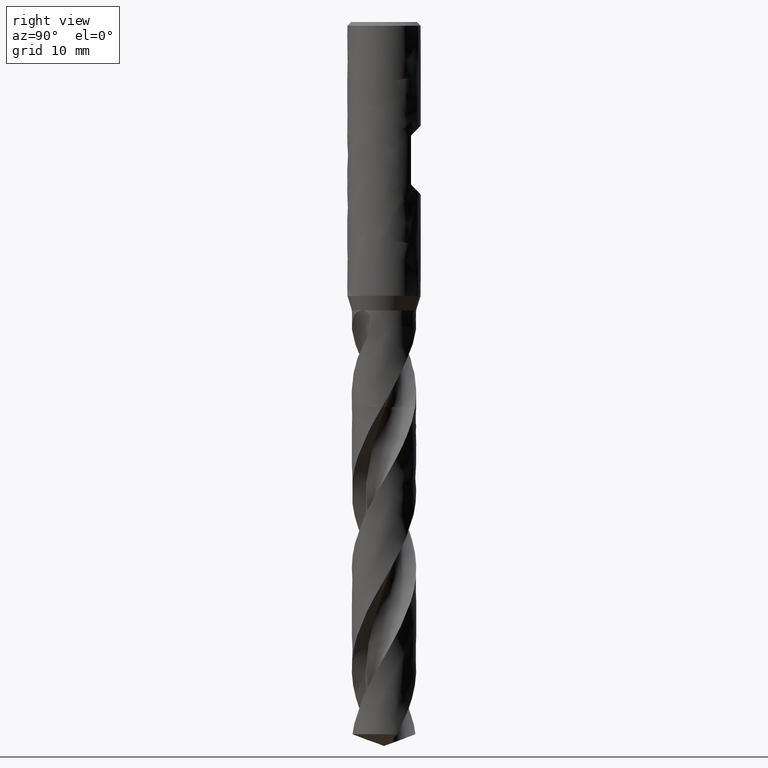
[diagram: clean part render]
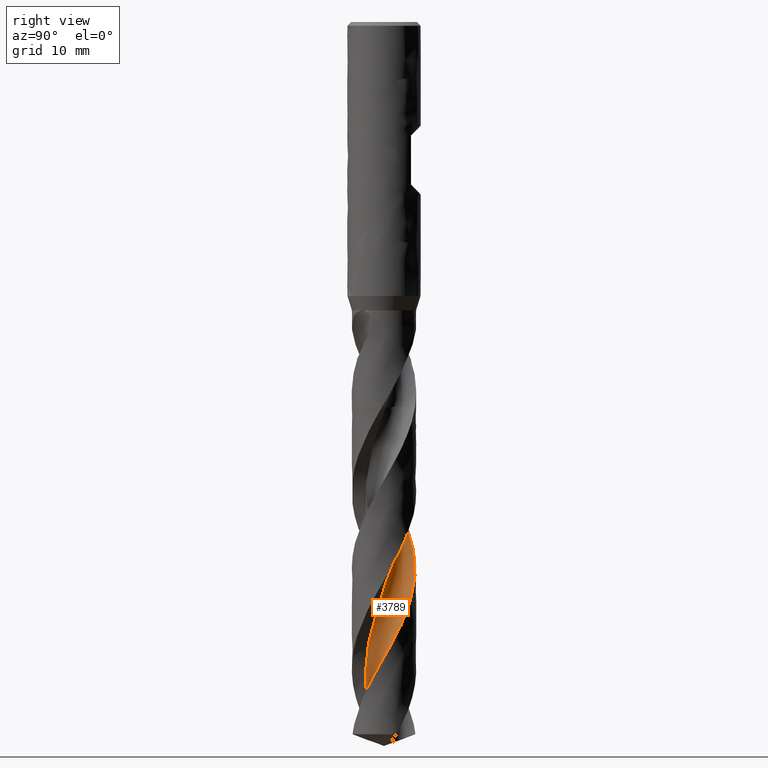
[diagram: same view with one face highlighted and labeled with its STEP entity id]
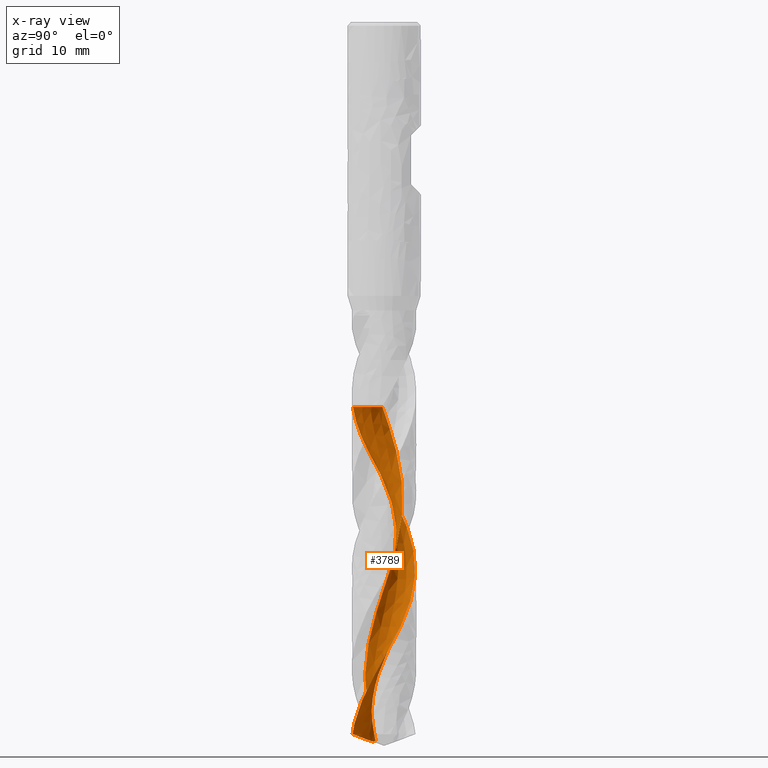
[diagram: x-ray of the same camera — body ghosted, the highlighted face saturated]
A machine part, right view. The second image highlights one B-rep face of the part: STEP entity #3789.
The next image is the same camera in x-ray: the body ghosted, the highlighted face saturated — about 0% of this face is hidden behind the body in this view.
In plain terms, the highlighted face is a freeform B-spline surface patch.
Its self-contained STEP definition (entity closure, byte-faithful):
#1973 = VERTEX_POINT('', #1974);
#1974 = CARTESIAN_POINT('', (-3.1334081568016, -0.248874584782158, -62.75));
#1980 = EDGE_CURVE('', #1973, #1981, #1983, .T.);
#1981 = VERTEX_POINT('', #1982);
#1982 = CARTESIAN_POINT('', (-1.35633793945835, -5.07176965111645, -62.75));
#1983 = B_SPLINE_CURVE_WITH_KNOTS('', 3, (#1984, #1985, #1986, #1987, #1988, #1989, #1990, #1991, #1992, #1993, #1994, #1995, #1996, #1997, #1998, #1999, #2000, #2001, #2002, #2003, #2004, #2005, #2006, #2007, #2008, #2009, #2010, #2011, #2012, #2013, #2014, #2015, #2016, #2017, #2018, #2019, #2020, #2021, #2022, #2023, #2024, #2025, #2026, #2027, #2028, #2029, #2030, #2031, #2032, #2033, #2034, #2035, #2036, #2037, #2038, #2039, #2040, #2041, #2042, #2043, #2044, #2045, #2046, #2047, #2048, #2049, #2050, #2051, #2052, #2053), .UNSPECIFIED., .F., .U., (4, 3, 3, 3, 3, 3, 3, 3, 3, 3, 3, 3, 3, 3, 3, 3, 3, 3, 3, 3, 3, 3, 3, 4), (0., 0.297289814293237, 0.594230461587512, 0.890830299739326, 1.18709591424545, 1.48303224947464, 1.77864270556402, 2.07392920506153, 2.36889223207832, 2.663530845595, 2.95784266756301, 3.01616542127915, 3.04211597583136, 3.33938297834455, 3.63630140955763, 3.93287950829857, 4.22912375063796, 4.52503897875334, 4.82062849576618, 5.11589413054066, 5.41083627513043, 5.70545389644996, 5.99974452274961, 6.00908405424866), .UNSPECIFIED.);
#1984 = CARTESIAN_POINT('', (-3.13340815680161, -0.248874584782156, -62.75));
#1985 = CARTESIAN_POINT('', (-3.03773633939749, -0.274701710646771, -62.75));
#1986 = CARTESIAN_POINT('', (-2.94317957143944, -0.305081901126084, -62.75));
#1987 = CARTESIAN_POINT('', (-2.85036837908436, -0.339812574161054, -62.75));
#1988 = CARTESIAN_POINT('', (-2.75766619350968, -0.374502456007453, -62.75));
#1989 = CARTESIAN_POINT('', (-2.66649978739498, -0.413609554930889, -62.75));
#1990 = CARTESIAN_POINT('', (-2.57747565439929, -0.456873707034031, -62.75));
#1991 = CARTESIAN_POINT('', (-2.48855369750748, -0.500088203360127, -62.75));
#1992 = CARTESIAN_POINT('', (-2.40157224118669, -0.547545858980497, -62.75));
#1993 = CARTESIAN_POINT('', (-2.31710861298185, -0.598931680183066, -62.75));
#1994 = CARTESIAN_POINT('', (-2.23274016265008, -0.650259597252557, -62.75));
#1995 = CARTESIAN_POINT('', (-2.15069751173773, -0.705620180617332, -62.75));
#1996 = CARTESIAN_POINT('', (-2.07152398261853, -0.764646808243239, -62.75));
#1997 = CARTESIAN_POINT('', (-1.99243844954458, -0.823607831748004, -62.75));
#1998 = CARTESIAN_POINT('', (-1.91604136230938, -0.886356674590326, -62.75));
#1999 = CARTESIAN_POINT('', (-1.84283753374668, -0.95247870811988, -62.75));
#2000 = CARTESIAN_POINT('', (-1.76971431576755, -1.01852792939611, -62.75));
#2001 = CARTESIAN_POINT('', (-1.69961651901388, -1.08808813804756, -62.75));
#2002 = CARTESIAN_POINT('', (-1.63300631431776, -1.16070070768367, -62.75));
#2003 = CARTESIAN_POINT('', (-1.56646910708993, -1.23323370191877, -62.75));
#2004 = CARTESIAN_POINT('', (-1.50326584471458, -1.30897150209786, -62.75));
#2005 = CARTESIAN_POINT('', (-1.44381232943583, -1.38741584363623, -62.75));
#2006 = CARTESIAN_POINT('', (-1.38442394268855, -1.46577425308559, -62.75));
#2007 = CARTESIAN_POINT('', (-1.32864705387687, -1.54700481623099, -62.75));
#2008 = CARTESIAN_POINT('', (-1.27684780636079, -1.63057430090481, -62.75));
#2009 = CARTESIAN_POINT('', (-1.22510552996873, -1.71405187213002, -62.75));
#2010 = CARTESIAN_POINT('', (-1.17721909885463, -1.80004557018657, -62.75));
#2011 = CARTESIAN_POINT('', (-1.1335021700843, -1.88799213466059, -62.75));
#2012 = CARTESIAN_POINT('', (-1.08983372892625, -1.9758411552531, -62.75));
#2013 = CARTESIAN_POINT('', (-1.05023034210554, -2.06583018753048, -62.75));
#2014 = CARTESIAN_POINT('', (-1.01495083842181, -2.15737110620659, -62.75));
#2015 = CARTESIAN_POINT('', (-1.00795962145059, -2.17551145279272, -62.75));
#2016 = CARTESIAN_POINT('', (-1.00113604244101, -2.19371729898417, -62.75));
#2017 = CARTESIAN_POINT('', (-0.994481855415924, -2.21198396490981, -62.75));
#2018 = CARTESIAN_POINT('', (-0.991521092550792, -2.22011166945712, -62.75));
#2019 = CARTESIAN_POINT('', (-0.988593781741603, -2.22825163802008, -62.75));
#2020 = CARTESIAN_POINT('', (-0.985700071969737, -2.23640345632694, -62.75));
#2021 = CARTESIAN_POINT('', (-0.952552247390675, -2.32978360310716, -62.75));
#2022 = CARTESIAN_POINT('', (-0.923783235876966, -2.4248349675074, -62.75));
#2023 = CARTESIAN_POINT('', (-0.899584846387327, -2.52092382239248, -62.75));
#2024 = CARTESIAN_POINT('', (-0.875414831604646, -2.61690000477511, -62.75));
#2025 = CARTESIAN_POINT('', (-0.85575108170962, -2.71412416206393, -62.75));
#2026 = CARTESIAN_POINT('', (-0.840724392229345, -2.81194959741998, -62.75));
#2027 = CARTESIAN_POINT('', (-0.825714926571647, -2.90966290375757, -62.75));
#2028 = CARTESIAN_POINT('', (-0.815298652126802, -3.00819238411711, -62.75));
#2029 = CARTESIAN_POINT('', (-0.809544695377202, -3.10688415822457, -62.75));
#2030 = CARTESIAN_POINT('', (-0.803797215826367, -3.20546483552244, -62.75));
#2031 = CARTESIAN_POINT('', (-0.80268884737278, -3.3044251446347, -62.75));
#2032 = CARTESIAN_POINT('', (-0.80622692906064, -3.40310982143745, -62.75));
#2033 = CARTESIAN_POINT('', (-0.80976108129086, -3.5016848972498, -62.75));
#2034 = CARTESIAN_POINT('', (-0.817939133212582, -3.60020216159012, -62.75));
#2035 = CARTESIAN_POINT('', (-0.830707054000696, -3.69801072973292, -62.75));
#2036 = CARTESIAN_POINT('', (-0.843460921258739, -3.79571164090663, -62.75));
#2037 = CARTESIAN_POINT('', (-0.860822577634401, -3.89292022602044, -62.75));
#2038 = CARTESIAN_POINT('', (-0.882677569939173, -3.98899565724803, -62.75));
#2039 = CARTESIAN_POINT('', (-0.904508615373641, -4.08496581706399, -62.75));
#2040 = CARTESIAN_POINT('', (-0.930871026863394, -4.1800158505983, -62.75));
#2041 = CARTESIAN_POINT('', (-0.961591395584618, -4.27352052997584, -62.75));
#2042 = CARTESIAN_POINT('', (-0.992278107365849, -4.36692276652752, -62.75));
#2043 = CARTESIAN_POINT('', (-1.0273803852674, -4.45898749936819, -62.75));
#2044 = CARTESIAN_POINT('', (-1.0666678354923, -4.54911046163435, -62.75));
#2045 = CARTESIAN_POINT('', (-1.10591205794503, -4.6391342620853, -62.75));
#2046 = CARTESIAN_POINT('', (-1.14941794553576, -4.72741720303733, -62.75));
#2047 = CARTESIAN_POINT('', (-1.1969005743829, -4.81338111175091, -62.75));
#2048 = CARTESIAN_POINT('', (-1.24433050243402, -4.89924960943677, -62.75));
#2049 = CARTESIAN_POINT('', (-1.2958316979214, -4.9829913714838, -62.75));
#2050 = CARTESIAN_POINT('', (-1.35106762205654, -5.06405918047539, -62.75));
#2051 = CARTESIAN_POINT('', (-1.35282057511463, -5.0666319275763, -62.75));
#2052 = CARTESIAN_POINT('', (-1.35457735160467, -5.06920208999283, -62.75));
#2053 = CARTESIAN_POINT('', (-1.35633793984704, -5.07176965084992, -62.75));
#2359 = VERTEX_POINT('', #2360);
#2360 = CARTESIAN_POINT('', (-2.79821184013639, -1.43162568454985, -116.855978291857));
#2391 = EDGE_CURVE('', #2359, #1973, #2392, .T.);
#2392 = B_SPLINE_CURVE_WITH_KNOTS('', 3, (#2393, #2394, #2395, #2396, #2397, #2398, #2399, #2400, #2401, #2402, #2403, #2404, #2405, #2406, #2407, #2408, #2409, #2410, #2411, #2412, #2413, #2414, #2415, #2416, #2417, #2418, #2419, #2420, #2421, #2422, #2423, #2424, #2425, #2426, #2427, #2428, #2429, #2430, #2431, #2432, #2433, #2434, #2435, #2436, #2437, #2438, #2439, #2440, #2441, #2442, #2443, #2444, #2445, #2446, #2447, #2448, #2449, #2450, #2451), .UNSPECIFIED., .F., .U., (4, 1, 1, 1, 1, 1, 1, 1, 1, 1, 1, 1, 1, 1, 1, 1, 1, 1, 1, 1, 1, 1, 1, 1, 1, 1, 1, 1, 1, 1, 1, 1, 1, 1, 1, 1, 1, 1, 1, 1, 1, 1, 1, 1, 1, 1, 1, 1, 1, 1, 1, 1, 1, 1, 1, 1, 4), (1.19402170814299, 1.94712328767123, 2.92068493150685, 3.89424657534247, 4.86780821917808, 5.8413698630137, 6.81493150684932, 7.78849315068493, 8.76205479452055, 9.73561643835616, 10.7091780821918, 11.6827397260274, 12.656301369863, 13.6298630136986, 14.6034246575342, 15.5769863013699, 16.5505479452055, 17.5241095890411, 18.4976712328767, 19.4712328767123, 20.4447945205479, 21.4183561643836, 22.3919178082192, 23.3654794520548, 24.3390410958904, 25.312602739726, 26.2861643835616, 27.2597260273973, 28.2332876712329, 29.2068493150685, 30.1804109589041, 31.1539726027397, 32.1275342465753, 33.101095890411, 34.0746575342466, 35.0482191780822, 36.0217808219178, 36.9953424657534, 37.968904109589, 38.9424657534247, 39.9160273972603, 40.8895890410959, 41.8631506849315, 42.8367123287671, 43.8102739726027, 44.7838356164384, 45.757397260274, 46.7309589041096, 47.7045205479452, 48.6780821917808, 49.6516438356164, 50.6252054794521, 51.5987671232877, 52.5723287671233, 53.5458904109589, 54.5194520547945, 55.3), .UNSPECIFIED.);
#2393 = CARTESIAN_POINT('', (-2.79821184013638, -1.43162568454986, -116.855978291857));
#2394 = CARTESIAN_POINT('', (-2.75712214684186, -1.50708040619269, -116.604944432014));
#2395 = CARTESIAN_POINT('', (-2.65598967799593, -1.6760699097674, -116.029390024226));
#2396 = CARTESIAN_POINT('', (-2.47423372732643, -1.92400677676863, -115.129315068493));
#2397 = CARTESIAN_POINT('', (-2.25116967736585, -2.16944879818277, -114.155753424658));
#2398 = CARTESIAN_POINT('', (-2.00420425036731, -2.38958610670809, -113.182191780822));
#2399 = CARTESIAN_POINT('', (-1.73615382624428, -2.58214062600634, -112.208630136986));
#2400 = CARTESIAN_POINT('', (-1.45004508709054, -2.74514078872852, -111.235068493151));
#2401 = CARTESIAN_POINT('', (-1.14908410278058, -2.87694196060473, -110.261506849315));
#2402 = CARTESIAN_POINT('', (-0.836621102513386, -2.97624172467087, -109.287945205479));
#2403 = CARTESIAN_POINT('', (-0.516114663338233, -3.0420919938626, -108.314383561644));
#2404 = CARTESIAN_POINT('', (-0.19109478275684, -3.07390728948073, -107.340821917808));
#2405 = CARTESIAN_POINT('', (0.134874545802901, -3.07146927486184, -106.367260273973));
#2406 = CARTESIAN_POINT('', (0.458232939868773, -3.03492747951229, -105.393698630137));
#2407 = CARTESIAN_POINT('', (0.775461020951675, -2.96479623763425, -104.420136986301));
#2408 = CARTESIAN_POINT('', (1.08311722391052, -2.86194788817521, -103.446575342466));
#2409 = CARTESIAN_POINT('', (1.37787365482435, -2.7276023234294, -102.47301369863));
#2410 = CARTESIAN_POINT('', (1.65655064241312, -2.56331300738391, -101.499452054795));
#2411 = CARTESIAN_POINT('', (1.91614964219238, -2.37094961904653, -100.525890410959));
#2412 = CARTESIAN_POINT('', (2.15388417034934, -2.15267750803563, -99.5523287671233));
#2413 = CARTESIAN_POINT('', (2.36720846492319, -1.91093417990145, -98.5787671232877));
#2414 = CARTESIAN_POINT('', (2.55384359523886, -1.64840305661177, -97.6052054794521));
#2415 = CARTESIAN_POINT('', (2.71180076640357, -1.36798478316549, -96.6316438356164));
#2416 = CARTESIAN_POINT('', (2.83940159379618, -1.07276637417311, -95.6580821917808));
#2417 = CARTESIAN_POINT('', (2.93529515259231, -0.765988514274093, -94.6845205479452));
#2418 = CARTESIAN_POINT('', (2.99847163919656, -0.451011343282986, -93.7109589041096));
#2419 = CARTESIAN_POINT('', (3.02827251470304, -0.13127907082888, -92.737397260274));
#2420 = CARTESIAN_POINT('', (3.02439703487661, 0.189716224134718, -91.7638356164384));
#2421 = CARTESIAN_POINT('', (2.98690510632807, 0.508471246303979, -90.7902739726027));
#2422 = CARTESIAN_POINT('', (2.91621644423224, 0.821508222969066, -89.8167123287671));
#2423 = CARTESIAN_POINT('', (2.81310604278971, 1.12541136197294, -88.8431506849315));
#2424 = CARTESIAN_POINT('', (2.67869600534055, 1.41686266471234, -87.8695890410959));
#2425 = CARTESIAN_POINT('', (2.5144438162857, 1.69267673658663, -86.8960273972603));
#2426 = CARTESIAN_POINT('', (2.32212717144373, 1.94983424701389, -85.9224657534247));
#2427 = CARTESIAN_POINT('', (2.10382551686197, 2.18551370409743, -84.9489041095891));
#2428 = CARTESIAN_POINT('', (1.86189847811263, 2.39712122512497, -83.9753424657534));
#2429 = CARTESIAN_POINT('', (1.59896139245043, 2.58231800317808, -83.0017808219178));
#2430 = CARTESIAN_POINT('', (1.31785818461492, 2.73904519205563, -82.0282191780822));
#2431 = CARTESIAN_POINT('', (1.02163185327022, 2.86554595628162, -81.0546575342466));
#2432 = CARTESIAN_POINT('', (0.713492858847355, 2.96038445996453, -80.081095890411));
#2433 = CARTESIAN_POINT('', (0.396785724668815, 3.02246159746645, -79.1075342465753));
#2434 = CARTESIAN_POINT('', (0.074954181492704, 3.05102729997497, -78.1339726027397));
#2435 = CARTESIAN_POINT('', (-0.248494799163272, 3.04568928487574, -77.1604109589041));
#2436 = CARTESIAN_POINT('', (-0.570027725516176, 3.00641814901606, -76.1868493150685));
#2437 = CARTESIAN_POINT('', (-0.886121693711166, 2.93354874221942, -75.2132876712329));
#2438 = CARTESIAN_POINT('', (-1.19330151223743, 2.82777779347777, -74.2397260273973));
#2439 = CARTESIAN_POINT('', (-1.48817646939561, 2.69015779867669, -73.2661643835616));
#2440 = CARTESIAN_POINT('', (-1.76747637178634, 2.52208721559387, -72.292602739726));
#2441 = CARTESIAN_POINT('', (-2.02808648901892, 2.32529704734646, -71.3190410958904));
#2442 = CARTESIAN_POINT('', (-2.26708104103188, 2.10183393498828, -70.3454794520548));
#2443 = CARTESIAN_POINT('', (-2.4817549047093, 1.85403990132322, -69.3719178082192));
#2444 = CARTESIAN_POINT('', (-2.66965312713995, 1.58452897267363, -68.3983561643836));
#2445 = CARTESIAN_POINT('', (-2.82859824319863, 1.29616074773671, -67.4247945205479));
#2446 = CARTESIAN_POINT('', (-2.95671395599351, 0.992011721723339, -66.4512328767123));
#2447 = CARTESIAN_POINT('', (-3.05244921651772, 0.675342557634146, -65.4776712328767));
#2448 = CARTESIAN_POINT('', (-3.11458641609078, 0.349569392316456, -64.5041095890411));
#2449 = CARTESIAN_POINT('', (-3.14046236696781, 0.0401083352556249, -63.5948858447489));
#2450 = CARTESIAN_POINT('', (-3.13816336359385, -0.159946540278383, -63.0101826484018));
#2451 = CARTESIAN_POINT('', (-3.1334081568016, -0.248874584782158, -62.75));
#3712 = EDGE_CURVE('', #1981, #3713, #3715, .T.);
#3713 = VERTEX_POINT('', #3714);
#3714 = CARTESIAN_POINT('', (-2.65477069065381, -4.52931480248894, -65.1981860486764));
#3715 = B_SPLINE_CURVE_WITH_KNOTS('', 3, (#3716, #3717, #3718, #3719, #3720, #3721, #3722, #3723, #3724, #3725, #3726, #3727, #3728), .UNSPECIFIED., .F., .U., (4, 3, 3, 3, 4), (6.2967392320551, 7.00585647049719, 8.00463571452116, 9.00311465826316, 9.12238741529185), .UNSPECIFIED.);
#3716 = CARTESIAN_POINT('', (-1.35633793945835, -5.07176965111645, -62.75));
#3717 = CARTESIAN_POINT('', (-1.47041764698693, -5.04126143680721, -62.9547608036939));
#3718 = CARTESIAN_POINT('', (-1.58348637967371, -5.00689627858443, -63.1595964558363));
#3719 = CARTESIAN_POINT('', (-1.69522744394253, -4.96877287801566, -63.3643706202826));
#3720 = CARTESIAN_POINT('', (-1.85261278115705, -4.91507673422517, -63.6527914540655));
#3721 = CARTESIAN_POINT('', (-2.0074855323784, -4.85388001956982, -63.9412949717076));
#3722 = CARTESIAN_POINT('', (-2.15905463211397, -4.78549716283958, -64.2297227624956));
#3723 = CARTESIAN_POINT('', (-2.31057815997401, -4.71713486659985, -64.5180638324719));
#3724 = CARTESIAN_POINT('', (-2.45888254606289, -4.64155368458583, -64.8064929032528));
#3725 = CARTESIAN_POINT('', (-2.60321595322281, -4.55914100471631, -65.0948492339475));
#3726 = CARTESIAN_POINT('', (-2.62045722156523, -4.54929644304201, -65.1292946819804));
#3727 = CARTESIAN_POINT('', (-2.63764254545913, -4.5393541351101, -65.1637403804217));
#3728 = CARTESIAN_POINT('', (-2.65477069065382, -4.52931480248894, -65.1981860486764));
#3789 = ADVANCED_FACE('', (#3790), #3991, .T.);
#3790 = FACE_OUTER_BOUND('', #3791, .T.);
#3791 = EDGE_LOOP('', (#3792, #3793, #3794, #3920, #3932, #3990));
#3792 = ORIENTED_EDGE('', *, *, #1980, .F.);
#3793 = ORIENTED_EDGE('', *, *, #2391, .F.);
#3794 = ORIENTED_EDGE('', *, *, #3795, .T.);
#3795 = EDGE_CURVE('', #2359, #3796, #3798, .T.);
#3796 = VERTEX_POINT('', #3797);
#3797 = CARTESIAN_POINT('', (1.12024850568416, -5.12908795844957, -116.089156270102));
#3798 = B_SPLINE_CURVE_WITH_KNOTS('', 3, (#3799, #3800, #3801, #3802, #3803, #3804, #3805, #3806, #3807, #3808, #3809, #3810, #3811, #3812, #3813, #3814, #3815, #3816, #3817, #3818, #3819, #3820, #3821, #3822, #3823, #3824, #3825, #3826, #3827, #3828, #3829, #3830, #3831, #3832, #3833, #3834, #3835, #3836, #3837, #3838, #3839, #3840, #3841, #3842, #3843, #3844, #3845, #3846, #3847, #3848, #3849, #3850, #3851, #3852, #3853, #3854, #3855, #3856, #3857, #3858, #3859, #3860, #3861, #3862, #3863, #3864, #3865, #3866, #3867, #3868, #3869, #3870, #3871, #3872, #3873, #3874, #3875, #3876, #3877, #3878, #3879, #3880, #3881, #3882, #3883, #3884, #3885, #3886, #3887, #3888, #3889, #3890, #3891, #3892, #3893, #3894, #3895, #3896, #3897, #3898, #3899, #3900, #3901, #3902, #3903, #3904, #3905, #3906, #3907, #3908, #3909, #3910, #3911, #3912, #3913, #3914, #3915, #3916, #3917, #3918, #3919), .UNSPECIFIED., .F., .U., (4, 3, 3, 3, 3, 3, 3, 3, 3, 3, 3, 3, 3, 3, 3, 3, 3, 3, 3, 3, 3, 3, 3, 3, 3, 3, 3, 3, 3, 3, 3, 3, 3, 3, 3, 3, 3, 3, 3, 3, 4), (0., 0.197298782090478, 0.394420374583606, 0.591302453466268, 0.787881699456655, 0.918886004257104, 1.04978506174527, 1.18058571113444, 1.31130550796435, 1.44197361851217, 1.57262927055434, 1.70331712535762, 1.83408006544027, 1.9649513018826, 2.09594846757682, 2.22707172691831, 2.35830615386282, 2.4896268888015, 2.62100491876217, 2.75241180764632, 2.88382267147547, 3.01521749215598, 3.05414310091258, 3.0931078264846, 3.22500062195649, 3.26396767200481, 3.4628079316441, 3.66119938575213, 3.85921606723416, 4.05692014955588, 4.25436209683736, 4.4515820684241, 4.64861163420901, 4.84547539503796, 5.04219236603148, 5.23877709902168, 5.43524056738805, 5.6315908507867, 5.92534421739599, 6.21875670805064, 6.26438132676479), .UNSPECIFIED.);
#3799 = CARTESIAN_POINT('', (-2.79821184013639, -1.43162568454985, -116.855978291857));
#3800 = CARTESIAN_POINT('', (-2.73805043670471, -1.4166883745997, -116.87794834772));
#3801 = CARTESIAN_POINT('', (-2.67716208648093, -1.40416420574339, -116.899721404657));
#3802 = CARTESIAN_POINT('', (-2.61579144733371, -1.39416939127693, -116.921144508552));
#3803 = CARTESIAN_POINT('', (-2.55447592377679, -1.38418355292848, -116.942548372839));
#3804 = CARTESIAN_POINT('', (-2.49258365044756, -1.37670750762033, -116.963636488343));
#3805 = CARTESIAN_POINT('', (-2.43037618832193, -1.37183432076656, -116.984225794033));
#3806 = CARTESIAN_POINT('', (-2.36824431169488, -1.36696705510368, -117.00479008258));
#3807 = CARTESIAN_POINT('', (-2.30569600202888, -1.36468898666088, -117.024890724317));
#3808 = CARTESIAN_POINT('', (-2.24300882719713, -1.36506302502217, -117.044310521911));
#3809 = CARTESIAN_POINT('', (-2.18041807423663, -1.36543648805879, -117.06370044907));
#3810 = CARTESIAN_POINT('', (-2.11758026715662, -1.36845540138358, -117.082445151086));
#3811 = CARTESIAN_POINT('', (-2.05478817293926, -1.37414316721292, -117.100292092832));
#3812 = CARTESIAN_POINT('', (-2.01294227710999, -1.37793360706626, -117.112185648453));
#3813 = CARTESIAN_POINT('', (-1.97107455808782, -1.3829118040672, -117.123691921523));
#3814 = CARTESIAN_POINT('', (-1.9292755894945, -1.3890722413781, -117.134728149775));
#3815 = CARTESIAN_POINT('', (-1.88751020169921, -1.39522772946638, -117.145755511652));
#3816 = CARTESIAN_POINT('', (-1.8457780402269, -1.402568932485, -117.15632275515));
#3817 = CARTESIAN_POINT('', (-1.80417239620504, -1.41107817605521, -117.16634291087));
#3818 = CARTESIAN_POINT('', (-1.76259803073029, -1.41958102249392, -117.176355533575));
#3819 = CARTESIAN_POINT('', (-1.72111350535519, -1.42925776849936, -117.185830401794));
#3820 = CARTESIAN_POINT('', (-1.67981431864797, -1.44007661146098, -117.194679621529));
#3821 = CARTESIAN_POINT('', (-1.63854066044505, -1.45088876690885, -117.203523371244));
#3822 = CARTESIAN_POINT('', (-1.59741480778919, -1.46285150419133, -117.21174986748));
#3823 = CARTESIAN_POINT('', (-1.5565334333029, -1.47591724098391, -117.21927510622));
#3824 = CARTESIAN_POINT('', (-1.51566822321025, -1.4889778116167, -117.226797369499));
#3825 = CARTESIAN_POINT('', (-1.47500958609772, -1.50315262244651, -117.233625439605));
#3826 = CARTESIAN_POINT('', (-1.43465356865479, -1.51837753434329, -117.239685329034));
#3827 = CARTESIAN_POINT('', (-1.39430139894234, -1.53360099462613, -117.245744640685));
#3828 = CARTESIAN_POINT('', (-1.35421425731711, -1.54988847405005, -117.251041134487));
#3829 = CARTESIAN_POINT('', (-1.31448488850101, -1.56716001135187, -117.255517500634));
#3830 = CARTESIAN_POINT('', (-1.27474572756836, -1.58443580557776, -117.259994970073));
#3831 = CARTESIAN_POINT('', (-1.23532790788971, -1.60271188897172, -117.263655723615));
#3832 = CARTESIAN_POINT('', (-1.19631751488463, -1.62189518586089, -117.266465006156));
#3833 = CARTESIAN_POINT('', (-1.15728470888439, -1.64108950430373, -117.26927590274));
#3834 = CARTESIAN_POINT('', (-1.11862495706455, -1.66120892099847, -117.271236752572));
#3835 = CARTESIAN_POINT('', (-1.08041422445716, -1.68215189200745, -117.272338942784));
#3836 = CARTESIAN_POINT('', (-1.04217184616148, -1.70311220774362, -117.273442045818));
#3837 = CARTESIAN_POINT('', (-1.00434697484375, -1.72491474638785, -117.273686135096));
#3838 = CARTESIAN_POINT('', (-0.967002709044644, -1.7474553847061, -117.273088970209));
#3839 = CARTESIAN_POINT('', (-0.929622509181017, -1.7700177124788, -117.272491230706));
#3840 = CARTESIAN_POINT('', (-0.892694826887319, -1.79333667372917, -117.271050505952));
#3841 = CARTESIAN_POINT('', (-0.856268576105138, -1.81731152282979, -117.268807710055));
#3842 = CARTESIAN_POINT('', (-0.819807262588639, -1.841309449347, -117.266562755315));
#3843 = CARTESIAN_POINT('', (-0.783822967299399, -1.86598086807492, -117.263513101271));
#3844 = CARTESIAN_POINT('', (-0.748350797405703, -1.89123325817726, -117.259717098187));
#3845 = CARTESIAN_POINT('', (-0.712848553853672, -1.91650705750702, -117.255917876814));
#3846 = CARTESIAN_POINT('', (-0.677837639728336, -1.94237795145805, -117.251369223167));
#3847 = CARTESIAN_POINT('', (-0.643341160997148, -1.96876466733243, -117.246140218162));
#3848 = CARTESIAN_POINT('', (-0.608821995216879, -1.99516873676693, -117.240907774236));
#3849 = CARTESIAN_POINT('', (-0.574799791553867, -2.02210299624957, -117.234991773035));
#3850 = CARTESIAN_POINT('', (-0.541288279221741, -2.04949853857778, -117.228465751271));
#3851 = CARTESIAN_POINT('', (-0.507762145871561, -2.07690603353631, -117.221936882213));
#3852 = CARTESIAN_POINT('', (-0.474732119319615, -2.10478739087889, -117.21479486998));
#3853 = CARTESIAN_POINT('', (-0.442205350535527, -2.13308567402282, -117.207112747093));
#3854 = CARTESIAN_POINT('', (-0.409671436816085, -2.16139017325926, -117.199428936726));
#3855 = CARTESIAN_POINT('', (-0.377628603284622, -2.19012252265944, -117.191202076389));
#3856 = CARTESIAN_POINT('', (-0.346079930460632, -2.21923642698538, -117.182501330522));
#3857 = CARTESIAN_POINT('', (-0.314530303316512, -2.2483512119818, -117.173800321466));
#3858 = CARTESIAN_POINT('', (-0.283464602733004, -2.2778570447995, -117.164622698662));
#3859 = CARTESIAN_POINT('', (-0.252883830299349, -2.30771653454548, -117.155031845394));
#3860 = CARTESIAN_POINT('', (-0.222306791285165, -2.33757237892898, -117.145442163016));
#3861 = CARTESIAN_POINT('', (-0.192205981609827, -2.36779019567438, -117.135436719818));
#3862 = CARTESIAN_POINT('', (-0.162581763274344, -2.39833972222679, -117.125072315239));
#3863 = CARTESIAN_POINT('', (-0.15380561268732, -2.40738999462048, -117.122001868812));
#3864 = CARTESIAN_POINT('', (-0.14507086191226, -2.41646985241959, -117.118899730091));
#3865 = CARTESIAN_POINT('', (-0.136377523207071, -2.42557860679845, -117.115767263553));
#3866 = CARTESIAN_POINT('', (-0.127675448460588, -2.43469651467485, -117.112631649163));
#3867 = CARTESIAN_POINT('', (-0.119014689270828, -2.44384356569807, -117.109465581198));
#3868 = CARTESIAN_POINT('', (-0.110395262159701, -2.45301910803401, -117.106270377658));
#3869 = CARTESIAN_POINT('', (-0.0812191209098039, -2.48407765934914, -117.09545484333));
#3870 = CARTESIAN_POINT('', (-0.0525123052532769, -2.51546686729065, -117.084304363934));
#3871 = CARTESIAN_POINT('', (-0.0242759980939307, -2.54716432897023, -117.072865898482));
#3872 = CARTESIAN_POINT('', (-0.0159337259453927, -2.55652918147224, -117.069486462523));
#3873 = CARTESIAN_POINT('', (-0.00763218805981724, -2.5659213440111, -117.066081713132));
#3874 = CARTESIAN_POINT('', (0.000628566916153558, -2.57534030133885, -117.062652759287));
#3875 = CARTESIAN_POINT('', (0.0427813771032644, -2.62340316260904, -117.045155564299));
#3876 = CARTESIAN_POINT('', (0.0838837953782592, -2.67217554149582, -117.027025568356));
#3877 = CARTESIAN_POINT('', (0.123925318861029, -2.72159775807993, -117.008393048996));
#3878 = CARTESIAN_POINT('', (0.163876463980526, -2.77090842298828, -116.989802585394));
#3879 = CARTESIAN_POINT('', (0.202787955622934, -2.82088660918102, -116.970703876358));
#3880 = CARTESIAN_POINT('', (0.240642016951074, -2.87148294910992, -116.951202044809));
#3881 = CARTESIAN_POINT('', (0.278424569826228, -2.92198370970419, -116.931737053317));
#3882 = CARTESIAN_POINT('', (0.315168062008484, -2.97311976244794, -116.911862736854));
#3883 = CARTESIAN_POINT('', (0.350847497284953, -3.02484737970831, -116.891664580328));
#3884 = CARTESIAN_POINT('', (0.386470607198206, -3.07649333713276, -116.871498309635));
#3885 = CARTESIAN_POINT('', (0.421045973437263, -3.12874798807871, -116.85100161151));
#3886 = CARTESIAN_POINT('', (0.454541858996475, -3.18157009789993, -116.830244932669));
#3887 = CARTESIAN_POINT('', (0.487993332496987, -3.23432217110015, -116.809515775025));
#3888 = CARTESIAN_POINT('', (0.520380129111798, -3.28765921270226, -116.788519697068));
#3889 = CARTESIAN_POINT('', (0.551664357057243, -3.34154029467587, -116.767315773608));
#3890 = CARTESIAN_POINT('', (0.582913413458201, -3.39536080041039, -116.746135688828));
#3891 = CARTESIAN_POINT('', (0.613073559005095, -3.44974353744289, -116.724740461823));
#3892 = CARTESIAN_POINT('', (0.642101308656864, -3.50464628019084, -116.703180662574));
#3893 = CARTESIAN_POINT('', (0.671101033500074, -3.55949601714698, -116.68164167821));
#3894 = CARTESIAN_POINT('', (0.698981110819788, -3.61488488172898, -116.659930440729));
#3895 = CARTESIAN_POINT('', (0.725692959562551, -3.67076808420328, -116.638091247737));
#3896 = CARTESIAN_POINT('', (0.752382329664169, -3.72660425966471, -116.616270432933));
#3897 = CARTESIAN_POINT('', (0.777915455913168, -3.7829550486712, -116.59431355714));
#3898 = CARTESIAN_POINT('', (0.802239098042128, -3.83977201184856, -116.572260392873));
#3899 = CARTESIAN_POINT('', (0.826544603448463, -3.89654660992714, -116.550223672366));
#3900 = CARTESIAN_POINT('', (0.849651923227351, -3.9538090232205, -116.52808208408));
#3901 = CARTESIAN_POINT('', (0.871503558019432, -4.01150615810646, -116.505872259371));
#3902 = CARTESIAN_POINT('', (0.893340503603259, -4.06916450755426, -116.483677364653));
#3903 = CARTESIAN_POINT('', (0.913932398624523, -4.12728079559948, -116.4614051248));
#3904 = CARTESIAN_POINT('', (0.933217881099229, -4.18579628621338, -116.439090144878));
#3905 = CARTESIAN_POINT('', (0.952491467193469, -4.24427568115064, -116.416788930103));
#3906 = CARTESIAN_POINT('', (0.970468584906604, -4.3031792873506, -116.394435276467));
#3907 = CARTESIAN_POINT('', (0.987084440511302, -4.36244171372381, -116.372062679468));
#3908 = CARTESIAN_POINT('', (1.00369072352168, -4.42166999830022, -116.349702971591));
#3909 = CARTESIAN_POINT('', (1.01894492636794, -4.48128412782121, -116.327313966508));
#3910 = CARTESIAN_POINT('', (1.03277933077348, -4.54121099470104, -116.304928820845));
#3911 = CARTESIAN_POINT('', (1.05347653985727, -4.63086565978016, -116.27143912179));
#3912 = CARTESIAN_POINT('', (1.07101445575828, -4.72130660696912, -116.23792655025));
#3913 = CARTESIAN_POINT('', (1.08515665261965, -4.81225072078247, -116.204504105579));
#3914 = CARTESIAN_POINT('', (1.09928243865682, -4.9030893016381, -116.171120444831));
#3915 = CARTESIAN_POINT('', (1.11003698854805, -4.9945420783732, -116.137785455195));
#3916 = CARTESIAN_POINT('', (1.11717914367894, -5.08627294711274, -116.104617824161));
#3917 = CARTESIAN_POINT('', (1.11828972388606, -5.10053677719448, -116.099460373242));
#3918 = CARTESIAN_POINT('', (1.11931314584916, -5.11480891287571, -116.094306366845));
#3919 = CARTESIAN_POINT('', (1.12024850568417, -5.12908795844956, -116.089156270102));
#3920 = ORIENTED_EDGE('', *, *, #3921, .F.);
#3921 = EDGE_CURVE('', #3922, #3796, #3924, .T.);
#3922 = VERTEX_POINT('', #3923);
#3923 = CARTESIAN_POINT('', (2.02076360020492, -4.84551488204162, -114.420233004824));
#3924 = B_SPLINE_CURVE_WITH_KNOTS('', 3, (#3925, #3926, #3927, #3928, #3929, #3930, #3931), .UNSPECIFIED., .F., .U., (4, 3, 4), (0., 0.996301580925688, 1.91792912295955), .UNSPECIFIED.);
#3925 = CARTESIAN_POINT('', (2.02076360020492, -4.84551488204162, -114.420233004824));
#3926 = CARTESIAN_POINT('', (1.8696673266752, -4.90852776242861, -114.709179458424));
#3927 = CARTESIAN_POINT('', (1.71559368830751, -4.96447690971918, -114.998210679973));
#3928 = CARTESIAN_POINT('', (1.55929526592329, -5.01309268552535, -115.287171005139));
#3929 = CARTESIAN_POINT('', (1.41471160410485, -5.05806464865189, -115.554473395627));
#3930 = CARTESIAN_POINT('', (1.26815855958828, -5.09678279655645, -115.821842833923));
#3931 = CARTESIAN_POINT('', (1.12024850568416, -5.12908795844957, -116.089156270102));
#3932 = ORIENTED_EDGE('', *, *, #3933, .T.);
#3933 = EDGE_CURVE('', #3922, #3713, #3934, .T.);
#3934 = B_SPLINE_CURVE_WITH_KNOTS('', 3, (#3935, #3936, #3937, #3938, #3939, #3940, #3941, #3942, #3943, #3944, #3945, #3946, #3947, #3948, #3949, #3950, #3951, #3952, #3953, #3954, #3955, #3956, #3957, #3958, #3959, #3960, #3961, #3962, #3963, #3964, #3965, #3966, #3967, #3968, #3969, #3970, #3971, #3972, #3973, #3974, #3975, #3976, #3977, #3978, #3979, #3980, #3981, #3982, #3983, #3984, #3985, #3986, #3987, #3988, #3989), .UNSPECIFIED., .F., .U., (4, 1, 1, 1, 1, 1, 1, 1, 1, 1, 1, 1, 1, 1, 1, 1, 1, 1, 1, 1, 1, 1, 1, 1, 1, 1, 1, 1, 1, 1, 1, 1, 1, 1, 1, 1, 1, 1, 1, 1, 1, 1, 1, 1, 1, 1, 1, 1, 1, 1, 1, 1, 4), (3.62976699517574, 3.89424657534247, 4.86780821917808, 5.8413698630137, 6.81493150684932, 7.78849315068493, 8.76205479452055, 9.73561643835616, 10.7091780821918, 11.6827397260274, 12.656301369863, 13.6298630136986, 14.6034246575342, 15.5769863013699, 16.5505479452055, 17.5241095890411, 18.4976712328767, 19.4712328767123, 20.4447945205479, 21.4183561643836, 22.3919178082192, 23.3654794520548, 24.3390410958904, 25.312602739726, 26.2861643835616, 27.2597260273973, 28.2332876712329, 29.2068493150685, 30.1804109589041, 31.1539726027397, 32.1275342465753, 33.101095890411, 34.0746575342466, 35.0482191780822, 36.0217808219178, 36.9953424657534, 37.968904109589, 38.9424657534247, 39.9160273972603, 40.8895890410959, 41.8631506849315, 42.8367123287671, 43.8102739726027, 44.7838356164384, 45.757397260274, 46.7309589041096, 47.7045205479452, 48.6780821917808, 49.6516438356164, 50.6252054794521, 51.5987671232877, 52.5723287671233, 52.8518139513235), .UNSPECIFIED.);
#3935 = CARTESIAN_POINT('', (2.02076360020496, -4.8455148820416, -114.420233004824));
#3936 = CARTESIAN_POINT('', (2.06680613516951, -4.82502728813151, -114.332073144769));
#3937 = CARTESIAN_POINT('', (2.28089073838208, -4.72608042694962, -113.919392736768));
#3938 = CARTESIAN_POINT('', (2.65054061567023, -4.52421645584729, -113.182191780822));
#3939 = CARTESIAN_POINT('', (3.10695379729294, -4.20865325109651, -112.208630136986));
#3940 = CARTESIAN_POINT('', (3.52678078198065, -3.8477899870187, -111.235068493151));
#3941 = CARTESIAN_POINT('', (3.90560510807014, -3.44577325125946, -110.261506849315));
#3942 = CARTESIAN_POINT('', (4.23947066748275, -3.00717134579288, -109.287945205479));
#3943 = CARTESIAN_POINT('', (4.52492112887634, -2.53692443233859, -108.314383561644));
#3944 = CARTESIAN_POINT('', (4.75903392088734, -2.04029074339958, -107.340821917808));
#3945 = CARTESIAN_POINT('', (4.93944856709605, -1.52278988919002, -106.367260273973));
#3946 = CARTESIAN_POINT('', (5.06438909226114, -0.990143722248348, -105.393698630137));
#3947 = CARTESIAN_POINT('', (5.13268031372759, -0.448215400600708, -104.420136986301));
#3948 = CARTESIAN_POINT('', (5.14375788357614, 0.0970527383464972, -103.446575342466));
#3949 = CARTESIAN_POINT('', (5.09767201137108, 0.63970186158368, -102.47301369863));
#3950 = CARTESIAN_POINT('', (4.99508485873355, 1.17381925141008, -101.499452054795));
#3951 = CARTESIAN_POINT('', (4.83726165886775, 1.69360021609533, -100.525890410959));
#3952 = CARTESIAN_POINT('', (4.62605567496576, 2.19340868297716, -99.5523287671233));
#3953 = CARTESIAN_POINT('', (4.36388717086067, 2.66783587222586, -98.5787671232877));
#3954 = CARTESIAN_POINT('', (4.05371662478192, 3.11175647069444, -97.6052054794521));
#3955 = CARTESIAN_POINT('', (3.69901247211051, 3.52038175178655, -96.6316438356164));
#3956 = CARTESIAN_POINT('', (3.30371371514754, 3.88930911886686, -95.6580821917808));
#3957 = CARTESIAN_POINT('', (2.87218778665017, 4.21456758609476, -94.6845205479452));
#3958 = CARTESIAN_POINT('', (2.40918409883205, 4.49265875133371, -93.7109589041096));
#3959 = CARTESIAN_POINT('', (1.91978375028853, 4.72059286059373, -92.737397260274));
#3960 = CARTESIAN_POINT('', (1.40934589954007, 4.89591961188517, -91.7638356164384));
#3961 = CARTESIAN_POINT('', (0.883451345284082, 5.01675339795757, -90.7902739726027));
#3962 = CARTESIAN_POINT('', (0.347843879738413, 5.0817927416971, -89.8167123287671));
#3963 = CARTESIAN_POINT('', (-0.191629997573604, 5.09033373447209, -88.8431506849315));
#3964 = CARTESIAN_POINT('', (-0.729082402783806, 5.04227734594058, -87.8695890410959));
#3965 = CARTESIAN_POINT('', (-1.25864581474611, 4.93813053324781, -86.8960273972603));
#3966 = CARTESIAN_POINT('', (-1.77453462946246, 4.77900113761426, -85.9224657534247));
#3967 = CARTESIAN_POINT('', (-2.27110590677074, 4.56658661651325, -84.9489041095891));
#3968 = CARTESIAN_POINT('', (-2.7429187015907, 4.30315671942402, -83.9753424657534));
#3969 = CARTESIAN_POINT('', (-3.18479138510437, 3.99153027398866, -83.0017808219178));
#3970 = CARTESIAN_POINT('', (-3.59185637990471, 3.63504630677444, -82.0282191780822));
#3971 = CARTESIAN_POINT('', (-3.95961175722772, 3.2375297782295, -81.0546575342466));
#3972 = CARTESIAN_POINT('', (-4.28396917368924, 2.80325226432172, -80.081095890411));
#3973 = CARTESIAN_POINT('', (-4.56129765923129, 2.33688796728403, -79.1075342465753));
#3974 = CARTESIAN_POINT('', (-4.78846280695827, 1.8434654843988, -78.1339726027397));
#3975 = CARTESIAN_POINT('', (-4.9628609588796, 1.32831580640203, -77.1604109589041));
#3976 = CARTESIAN_POINT('', (-5.08244802890615, 0.797017055483597, -76.1868493150685));
#3977 = CARTESIAN_POINT('', (-5.14576265536422, 0.255336506600925, -75.2132876712329));
#3978 = CARTESIAN_POINT('', (-5.15194342936809, -0.290829535305243, -74.2397260273973));
#3979 = CARTESIAN_POINT('', (-5.10074000211365, -0.835517406327729, -73.2661643835616));
#3980 = CARTESIAN_POINT('', (-4.99251793320197, -1.37275868793138, -72.292602739726));
#3981 = CARTESIAN_POINT('', (-4.82825720229513, -1.89664312111721, -71.3190410958904));
#3982 = CARTESIAN_POINT('', (-4.60954436966317, -2.4013811864597, -70.3454794520548));
#3983 = CARTESIAN_POINT('', (-4.33855842778746, -2.88136575778409, -69.3719178082192));
#3984 = CARTESIAN_POINT('', (-4.01805046974862, -3.33123204793204, -68.3983561643836));
#3985 = CARTESIAN_POINT('', (-3.65131728254832, -3.74591580385936, -67.4247945205479));
#3986 = CARTESIAN_POINT('', (-3.24216933014307, -4.12070701185734, -66.4512328767123));
#3987 = CARTESIAN_POINT('', (-2.90118414951522, -4.37274230365679, -65.7090300527552));
#3988 = CARTESIAN_POINT('', (-2.70006742915971, -4.50131124159852, -65.2913477767432));
#3989 = CARTESIAN_POINT('', (-2.65477069065386, -4.52931480248892, -65.1981860486765));
#3990 = ORIENTED_EDGE('', *, *, #3712, .F.);
#3991 = (
   BOUNDED_SURFACE ()
   B_SPLINE_SURFACE (3, 2, ((#3992, #3993, #3994, #3995, #3996), (#3997, #3998, #3999, #4000, #4001), (#4002, #4003, #4004, #4005, #4006), (#4007, #4008, #4009, #4010, #4011), (#4012, #4013, #4014, #4015, #4016), (#4017, #4018, #4019, #4020, #4021), (#4022, #4023, #4024, #4025, #4026), (#4027, #4028, #4029, #4030, #4031), (#4032, #4033, #4034, #4035, #4036), (#4037, #4038, #4039, #4040, #4041), (#4042, #4043, #4044, #4045, #4046), (#4047, #4048, #4049, #4050, #4051), (#4052, #4053, #4054, #4055, #4056), (#4057, #4058, #4059, #4060, #4061), (#4062, #4063, #4064, #4065, #4066), (#4067, #4068, #4069, #4070, #4071), (#4072, #4073, #4074, #4075, #4076), (#4077, #4078, #4079, #4080, #4081), (#4082, #4083, #4084, #4085, #4086), (#4087, #4088, #4089, #4090, #4091), (#4092, #4093, #4094, #4095, #4096), (#4097, #4098, #4099, #4100, #4101), (#4102, #4103, #4104, #4105, #4106), (#4107, #4108, #4109, #4110, #4111), (#4112, #4113, #4114, #4115, #4116), (#4117, #4118, #4119, #4120, #4121), (#4122, #4123, #4124, #4125, #4126), (#4127, #4128, #4129, #4130, #4131), (#4132, #4133, #4134, #4135, #4136), (#4137, #4138, #4139, #4140, #4141), (#4142, #4143, #4144, #4145, #4146), (#4147, #4148, #4149, #4150, #4151), (#4152, #4153, #4154, #4155, #4156), (#4157, #4158, #4159, #4160, #4161), (#4162, #4163, #4164, #4165, #4166), (#4167, #4168, #4169, #4170, #4171), (#4172, #4173, #4174, #4175, #4176), (#4177, #4178, #4179, #4180, #4181), (#4182, #4183, #4184, #4185, #4186), (#4187, #4188, #4189, #4190, #4191), (#4192, #4193, #4194, #4195, #4196), (#4197, #4198, #4199, #4200, #4201), (#4202, #4203, #4204, #4205, #4206), (#4207, #4208, #4209, #4210, #4211), (#4212, #4213, #4214, #4215, #4216), (#4217, #4218, #4219, #4220, #4221), (#4222, #4223, #4224, #4225, #4226), (#4227, #4228, #4229, #4230, #4231), (#4232, #4233, #4234, #4235, #4236), (#4237, #4238, #4239, #4240, #4241), (#4242, #4243, #4244, #4245, #4246), (#4247, #4248, #4249, #4250, #4251), (#4252, #4253, #4254, #4255, #4256), (#4257, #4258, #4259, #4260, #4261), (#4262, #4263, #4264, #4265, #4266), (#4267, #4268, #4269, #4270, #4271), (#4272, #4273, #4274, #4275, #4276), (#4277, #4278, #4279, #4280, #4281), (#4282, #4283, #4284, #4285, #4286)), .UNSPECIFIED., .F., .F., .U.)
   B_SPLINE_SURFACE_WITH_KNOTS ((4, 1, 1, 1, 1, 1, 1, 1, 1, 1, 1, 1, 1, 1, 1, 1, 1, 1, 1, 1, 1, 1, 1, 1, 1, 1, 1, 1, 1, 1, 1, 1, 1, 1, 1, 1, 1, 1, 1, 1, 1, 1, 1, 1, 1, 1, 1, 1, 1, 1, 1, 1, 1, 1, 1, 1, 4), (3, 2, 3), (0.77631386489341, 1.94712328767123, 2.92068493150685, 3.89424657534247, 4.86780821917808, 5.8413698630137, 6.81493150684932, 7.78849315068493, 8.76205479452055, 9.73561643835616, 10.7091780821918, 11.6827397260274, 12.656301369863, 13.6298630136986, 14.6034246575342, 15.5769863013699, 16.5505479452055, 17.5241095890411, 18.4976712328767, 19.4712328767123, 20.4447945205479, 21.4183561643836, 22.3919178082192, 23.3654794520548, 24.3390410958904, 25.312602739726, 26.2861643835616, 27.2597260273973, 28.2332876712329, 29.2068493150685, 30.1804109589041, 31.1539726027397, 32.1275342465753, 33.101095890411, 34.0746575342466, 35.0482191780822, 36.0217808219178, 36.9953424657534, 37.968904109589, 38.9424657534247, 39.9160273972603, 40.8895890410959, 41.8631506849315, 42.8367123287671, 43.8102739726027, 44.7838356164384, 45.757397260274, 46.7309589041096, 47.7045205479452, 48.6780821917808, 49.6516438356164, 50.6252054794521, 51.5987671232877, 52.5723287671233, 53.5458904109589, 54.5194520547945, 55.3), (0., 0.5, 1.), .UNSPECIFIED.)
   GEOMETRIC_REPRESENTATION_ITEM ()
   RATIONAL_B_SPLINE_SURFACE (((1., 0.887010833178222, 1., 0.887010833178222, 1.), (1., 0.887010833178222, 1., 0.887010833178222, 1.), (1., 0.887010833178222, 1., 0.887010833178222, 1.), (1., 0.887010833178221, 1., 0.887010833178221, 1.), (1., 0.887010833178221, 1., 0.887010833178221, 1.), (1., 0.887010833178221, 1., 0.887010833178221, 1.), (1., 0.887010833178222, 1., 0.887010833178222, 1.), (1., 0.887010833178222, 1., 0.887010833178222, 1.), (1., 0.887010833178221, 1., 0.887010833178221, 1.), (1., 0.887010833178222, 1., 0.887010833178222, 1.), (1., 0.887010833178222, 1., 0.887010833178222, 1.), (1., 0.887010833178222, 1., 0.887010833178222, 1.), (1., 0.887010833178221, 1., 0.887010833178221, 1.), (1., 0.887010833178221, 1., 0.887010833178221, 1.), (1., 0.887010833178222, 1., 0.887010833178222, 1.), (1., 0.887010833178222, 1., 0.887010833178222, 1.), (1., 0.887010833178222, 1., 0.887010833178222, 1.), (1., 0.887010833178222, 1., 0.887010833178222, 1.), (1., 0.887010833178222, 1., 0.887010833178222, 1.), (1., 0.887010833178222, 1., 0.887010833178222, 1.), (1., 0.887010833178222, 1., 0.887010833178222, 1.), (1., 0.887010833178222, 1., 0.887010833178222, 1.), (1., 0.887010833178222, 1., 0.887010833178222, 1.), (1., 0.887010833178222, 1., 0.887010833178222, 1.), (1., 0.887010833178222, 1., 0.887010833178222, 1.), (1., 0.887010833178222, 1., 0.887010833178222, 1.), (1., 0.887010833178222, 1., 0.887010833178222, 1.), (1., 0.887010833178222, 1., 0.887010833178222, 1.), (1., 0.887010833178222, 1., 0.887010833178222, 1.), (1., 0.887010833178222, 1., 0.887010833178222, 1.), (1., 0.887010833178222, 1., 0.887010833178222, 1.), (1., 0.887010833178222, 1., 0.887010833178222, 1.), (1., 0.887010833178222, 1., 0.887010833178222, 1.), (1., 0.887010833178221, 1., 0.887010833178221, 1.), (1., 0.887010833178222, 1., 0.887010833178222, 1.), (1., 0.887010833178222, 1., 0.887010833178222, 1.), (1., 0.887010833178222, 1., 0.887010833178222, 1.), (1., 0.887010833178222, 1., 0.887010833178222, 1.), (1., 0.887010833178222, 1., 0.887010833178222, 1.), (1., 0.887010833178222, 1., 0.887010833178222, 1.), (1., 0.887010833178222, 1., 0.887010833178222, 1.), (1., 0.887010833178222, 1., 0.887010833178222, 1.), (1., 0.887010833178222, 1., 0.887010833178222, 1.), (1., 0.887010833178222, 1., 0.887010833178222, 1.), (1., 0.887010833178222, 1., 0.887010833178222, 1.), (1., 0.887010833178222, 1., 0.887010833178222, 1.), (1., 0.887010833178222, 1., 0.887010833178222, 1.), (1., 0.887010833178222, 1., 0.887010833178222, 1.), (1., 0.887010833178222, 1., 0.887010833178222, 1.), (1., 0.887010833178222, 1., 0.887010833178222, 1.), (1., 0.887010833178221, 1., 0.887010833178221, 1.), (1., 0.887010833178222, 1., 0.887010833178222, 1.), (1., 0.887010833178222, 1., 0.887010833178222, 1.), (1., 0.887010833178221, 1., 0.887010833178221, 1.), (1., 0.887010833178222, 1., 0.887010833178222, 1.), (1., 0.887010833178222, 1., 0.887010833178222, 1.), (1., 0.887010833178222, 1., 0.887010833178222, 1.), (1., 0.887010833178221, 1., 0.887010833178221, 1.), (1., 0.887010833178222, 1., 0.887010833178222, 1.)))
   REPRESENTATION_ITEM ('')
   SURFACE ()
);
#3992 = CARTESIAN_POINT('', (0.446548506866924, -5.27179387972692, -117.273686135107));
#3993 = CARTESIAN_POINT('', (0.875855916477429, -3.68712331041057, -117.273686135107));
#3994 = CARTESIAN_POINT('', (-0.175989605799168, -2.42652557026086, -117.273686135107));
#3995 = CARTESIAN_POINT('', (-1.22783512807576, -1.16592783011114, -117.273686135107));
#3996 = CARTESIAN_POINT('', (-2.8637701502047, -1.30450008049299, -117.273686135107));
#3997 = CARTESIAN_POINT('', (0.670004359318053, -5.24696395531484, -116.883416327514));
#3998 = CARTESIAN_POINT('', (1.03151582516109, -3.64581736622865, -116.883416327514));
#3999 = CARTESIAN_POINT('', (-0.072712218216919, -2.43130455530572, -116.883416327514));
#4000 = CARTESIAN_POINT('', (-1.17694026159493, -1.21679174438279, -116.883416327514));
#4001 = CARTESIAN_POINT('', (-2.80517009951726, -1.42470647348526, -116.883416327514));
#4002 = CARTESIAN_POINT('', (1.07571087569143, -5.17569470476349, -116.168625971976));
#4003 = CARTESIAN_POINT('', (1.31135253341383, -3.55227078327097, -116.168625971976));
#4004 = CARTESIAN_POINT('', (0.116680011667841, -2.42808673005131, -116.168625971976));
#4005 = CARTESIAN_POINT('', (-1.07799251007814, -1.30390267683164, -116.168625971976));
#4006 = CARTESIAN_POINT('', (-2.6841061830597, -1.63771563222734, -116.168625971976));
#4007 = CARTESIAN_POINT('', (1.6476528846438, -5.00523800312091, -115.129315068493));
#4008 = CARTESIAN_POINT('', (1.69842252645005, -3.37081677257828, -115.129315068493));
#4009 = CARTESIAN_POINT('', (0.388703304443762, -2.39176321179373, -115.129315068493));
#4010 = CARTESIAN_POINT('', (-0.921015917562523, -1.41270965100919, -115.129315068493));
#4011 = CARTESIAN_POINT('', (-2.47423372732643, -1.92400677676863, -115.129315068493));
#4012 = CARTESIAN_POINT('', (2.16237393700052, -4.79080186645, -114.155753424658));
#4013 = CARTESIAN_POINT('', (2.04028965673994, -3.16428106093653, -114.155753424658));
#4014 = CARTESIAN_POINT('', (0.637897147418656, -2.33135264141029, -114.155753424658));
#4015 = CARTESIAN_POINT('', (-0.764495361902627, -1.49842422188405, -114.155753424658));
#4016 = CARTESIAN_POINT('', (-2.25116967736585, -2.16944879818277, -114.155753424658));
#4017 = CARTESIAN_POINT('', (2.65054061567023, -4.52421645584729, -113.182191780822));
#4018 = CARTESIAN_POINT('', (2.35781090238641, -2.9236213640304, -113.182191780822));
#4019 = CARTESIAN_POINT('', (0.878777295086278, -2.24534787828567, -113.182191780822));
#4020 = CARTESIAN_POINT('', (-0.600256312213851, -1.56707439254093, -113.182191780822));
#4021 = CARTESIAN_POINT('', (-2.00420425036731, -2.38958610670809, -113.182191780822));
#4022 = CARTESIAN_POINT('', (3.10695379729294, -4.2086532510965, -112.208630136986));
#4023 = CARTESIAN_POINT('', (2.64763983062583, -2.65163615535431, -112.208630136986));
#4024 = CARTESIAN_POINT('', (1.10875442548852, -2.1348158130067, -112.208630136986));
#4025 = CARTESIAN_POINT('', (-0.430130979648797, -1.61799547065908, -112.208630136986));
#4026 = CARTESIAN_POINT('', (-1.73615382624428, -2.58214062600634, -112.208630136986));
#4027 = CARTESIAN_POINT('', (3.52678078198065, -3.8477899870187, -111.235068493151));
#4028 = CARTESIAN_POINT('', (2.90674331308797, -2.35144364704019, -111.235068493151));
#4029 = CARTESIAN_POINT('', (1.32536926791864, -2.0010796059876, -111.235068493151));
#4030 = CARTESIAN_POINT('', (-0.256004777250696, -1.65071556493501, -111.235068493151));
#4031 = CARTESIAN_POINT('', (-1.45004508709054, -2.74514078872852, -111.235068493151));
#4032 = CARTESIAN_POINT('', (3.90560510807014, -3.44577325125946, -110.261506849315));
#4033 = CARTESIAN_POINT('', (3.13243284467853, -2.02645000718157, -110.261506849315));
#4034 = CARTESIAN_POINT('', (1.52631791626362, -1.84570527895795, -110.261506849315));
#4035 = CARTESIAN_POINT('', (-0.0797970121513001, -1.66496055073433, -110.261506849315));
#4036 = CARTESIAN_POINT('', (-1.14908410278058, -2.87694196060473, -110.261506849315));
#4037 = CARTESIAN_POINT('', (4.23947066748275, -3.00717134579288, -109.287945205479));
#4038 = CARTESIAN_POINT('', (3.32239079167232, -1.68031128491938, -109.287945205479));
#4039 = CARTESIAN_POINT('', (1.70947525330577, -1.67048347471343, -109.287945205479));
#4040 = CARTESIAN_POINT('', (0.0965597149392148, -1.66065566450749, -109.287945205479));
#4041 = CARTESIAN_POINT('', (-0.836621102513387, -2.97624172467087, -109.287945205479));
#4042 = CARTESIAN_POINT('', (4.52492112887634, -2.53692443233859, -108.314383561644));
#4043 = CARTESIAN_POINT('', (3.47469302759267, -1.31689390947085, -108.314383561644));
#4044 = CARTESIAN_POINT('', (1.87291643900057, -1.47740964606113, -108.314383561644));
#4045 = CARTESIAN_POINT('', (0.271139850408473, -1.63792538265141, -108.314383561644));
#4046 = CARTESIAN_POINT('', (-0.516114663338233, -3.0420919938626, -108.314383561644));
#4047 = CARTESIAN_POINT('', (4.75903392088734, -2.04029074339958, -107.340821917808));
#4048 = CARTESIAN_POINT('', (3.58782729790438, -0.940232979425572, -107.340821917808));
#4049 = CARTESIAN_POINT('', (2.01493621066778, -1.26866206688636, -107.340821917808));
#4050 = CARTESIAN_POINT('', (0.442045123431177, -1.59709115434715, -107.340821917808));
#4051 = CARTESIAN_POINT('', (-0.19109478275684, -3.07390728948073, -107.340821917808));
#4052 = CARTESIAN_POINT('', (4.93944856709605, -1.52278988919002, -106.367260273973));
#4053 = CARTESIAN_POINT('', (3.66070727526165, -0.554489094262428, -106.367260273973));
#4054 = CARTESIAN_POINT('', (2.13406582642474, -1.04657811831487, -106.367260273973));
#4055 = CARTESIAN_POINT('', (0.607424377587836, -1.53866714236732, -106.367260273973));
#4056 = CARTESIAN_POINT('', (0.134874545802901, -3.07146927486184, -106.367260273973));
#4057 = CARTESIAN_POINT('', (5.06438909226114, -0.990143722248347, -105.393698630137));
#4058 = CARTESIAN_POINT('', (3.69268215565121, -0.163904084987258, -105.393698630137));
#4059 = CARTESIAN_POINT('', (2.22908749129745, -0.813629039564481, -105.393698630137));
#4060 = CARTESIAN_POINT('', (0.7654928269437, -1.4633539941417, -105.393698630137));
#4061 = CARTESIAN_POINT('', (0.458232939868773, -3.03492747951229, -105.393698630137));
#4062 = CARTESIAN_POINT('', (5.13268031372759, -0.448215400600707, -104.420136986301));
#4063 = CARTESIAN_POINT('', (3.68354173161949, 0.22724388237103, -104.420136986301));
#4064 = CARTESIAN_POINT('', (2.29904613543484, -0.572393421193715, -104.420136986301));
#4065 = CARTESIAN_POINT('', (0.914550539250186, -1.37203072475846, -104.420136986301));
#4066 = CARTESIAN_POINT('', (0.775461020951674, -2.96479623763425, -104.420136986301));
#4067 = CARTESIAN_POINT('', (5.14375788357614, 0.0970527383464976, -103.446575342466));
#4068 = CARTESIAN_POINT('', (3.63351691232646, 0.614685382473053, -103.446575342466));
#4069 = CARTESIAN_POINT('', (2.34325843937874, -0.325529709138037, -103.446575342466));
#4070 = CARTESIAN_POINT('', (1.05299996643102, -1.26574480074913, -103.446575342466));
#4071 = CARTESIAN_POINT('', (1.08311722391051, -2.86194788817521, -103.446575342466));
#4072 = CARTESIAN_POINT('', (5.09767201137108, 0.63970186158368, -102.47301369863));
#4073 = CARTESIAN_POINT('', (3.54327570777214, 0.994204530721711, -102.47301369863));
#4074 = CARTESIAN_POINT('', (2.36131902914631, -0.075748001365481, -102.47301369863));
#4075 = CARTESIAN_POINT('', (1.17936235052047, -1.14570053345267, -102.47301369863));
#4076 = CARTESIAN_POINT('', (1.37787365482435, -2.7276023234294, -102.47301369863));
#4077 = CARTESIAN_POINT('', (4.99508485873355, 1.17381925141008, -101.499452054795));
#4078 = CARTESIAN_POINT('', (3.41391473790301, 1.36168306005577, -101.499452054795));
#4079 = CARTESIAN_POINT('', (2.35310379183225, 0.17421857709109, -101.499452054795));
#4080 = CARTESIAN_POINT('', (1.29229284576148, -1.01324590587359, -101.499452054795));
#4081 = CARTESIAN_POINT('', (1.65655064241312, -2.56331300738391, -101.499452054795));
#4082 = CARTESIAN_POINT('', (4.83726165886775, 1.69360021609533, -100.525890410959));
#4083 = CARTESIAN_POINT('', (3.24694637082118, 1.71314323568562, -100.525890410959));
#4084 = CARTESIAN_POINT('', (2.31877029077987, 0.421642631950377, -100.525890410959));
#4085 = CARTESIAN_POINT('', (1.39059421073856, -0.869857971784866, -100.525890410959));
#4086 = CARTESIAN_POINT('', (1.91614964219238, -2.37094961904653, -100.525890410959));
#4087 = CARTESIAN_POINT('', (4.62605567496576, 2.19340868297716, -99.5523287671233));
#4088 = CARTESIAN_POINT('', (3.04428163631962, 2.04478918256043, -99.5523287671233));
#4089 = CARTESIAN_POINT('', (2.25875528770795, 0.663831101778887, -99.5523287671233));
#4090 = CARTESIAN_POINT('', (1.47322893909627, -0.717126979002651, -99.5523287671233));
#4091 = CARTESIAN_POINT('', (2.15388417034934, -2.15267750803563, -99.5523287671233));
#4092 = CARTESIAN_POINT('', (4.36388717086067, 2.66783587222586, -98.5787671232877));
#4093 = CARTESIAN_POINT('', (2.80820910142664, 2.35304621767613, -98.5787671232877));
#4094 = CARTESIAN_POINT('', (2.17376940729664, 0.898153418586881, -98.5787671232877));
#4095 = CARTESIAN_POINT('', (1.53932971316663, -0.556739380502366, -98.5787671232877));
#4096 = CARTESIAN_POINT('', (2.36720846492319, -1.91093417990145, -98.5787671232877));
#4097 = CARTESIAN_POINT('', (4.05371662478192, 3.11175647069444, -97.6052054794521));
#4098 = CARTESIAN_POINT('', (2.54136993311567, 2.63459780044487, -97.6052054794521));
#4099 = CARTESIAN_POINT('', (2.06478900736759, 1.12206894663701, -97.6052054794521));
#4100 = CARTESIAN_POINT('', (1.58820808161952, -0.390459907170847, -97.6052054794521));
#4101 = CARTESIAN_POINT('', (2.55384359523885, -1.64840305661177, -97.6052054794521));
#4102 = CARTESIAN_POINT('', (3.6990124721105, 3.52038175178655, -96.6316438356164));
#4103 = CARTESIAN_POINT('', (2.24672940951524, 2.88641973896998, -96.6316438356165));
#4104 = CARTESIAN_POINT('', (1.93304534469912, 1.33315342726554, -96.6316438356164));
#4105 = CARTESIAN_POINT('', (1.61936127988299, -0.220112884438915, -96.6316438356165));
#4106 = CARTESIAN_POINT('', (2.71180076640357, -1.36798478316549, -96.6316438356164));
#4107 = CARTESIAN_POINT('', (3.30371371514754, 3.88930911886687, -95.6580821917808));
#4108 = CARTESIAN_POINT('', (1.92754517451965, 3.10581131798231, -95.6580821917808));
#4109 = CARTESIAN_POINT('', (1.7800111524584, 1.52912416812053, -95.6580821917808));
#4110 = CARTESIAN_POINT('', (1.63247713039715, -0.0475629817412546, -95.6580821917808));
#4111 = CARTESIAN_POINT('', (2.83940159379618, -1.07276637417312, -95.6580821917808));
#4112 = CARTESIAN_POINT('', (2.87218778665017, 4.21456758609476, -94.6845205479452));
#4113 = CARTESIAN_POINT('', (1.58733256136944, 3.2904230451211, -94.6845205479452));
#4114 = CARTESIAN_POINT('', (1.60738476998298, 1.70786372823204, -94.6845205479452));
#4115 = CARTESIAN_POINT('', (1.62743697859653, 0.125304411342982, -94.6845205479452));
#4116 = CARTESIAN_POINT('', (2.93529515259231, -0.765988514274093, -94.6845205479452));
#4117 = CARTESIAN_POINT('', (2.40918409883205, 4.49265875133371, -93.7109589041096));
#4118 = CARTESIAN_POINT('', (1.2298273382815, 3.4382807458954, -93.7109589041096));
#4119 = CARTESIAN_POINT('', (1.41707198898656, 1.86744186561814, -93.7109589041096));
#4120 = CARTESIAN_POINT('', (1.60431663969161, 0.296602985340887, -93.7109589041096));
#4121 = CARTESIAN_POINT('', (2.99847163919656, -0.451011343282986, -93.7109589041096));
#4122 = CARTESIAN_POINT('', (1.91978375028853, 4.72059286059373, -92.737397260274));
#4123 = CARTESIAN_POINT('', (0.858946253329358, 3.54780577372763, -92.737397260274));
#4124 = CARTESIAN_POINT('', (1.21116580199805, 2.00613553155192, -92.737397260274));
#4125 = CARTESIAN_POINT('', (1.56338535066674, 0.464465289376213, -92.737397260274));
#4126 = CARTESIAN_POINT('', (3.02827251470304, -0.13127907082888, -92.737397260274));
#4127 = CARTESIAN_POINT('', (1.40934589954007, 4.89591961188517, -91.7638356164384));
#4128 = CARTESIAN_POINT('', (0.478745776302347, 3.61783113962809, -91.7638356164384));
#4129 = CARTESIAN_POINT('', (0.991924258779396, 2.12244671500375, -91.7638356164384));
#4130 = CARTESIAN_POINT('', (1.50510274125644, 0.627062290379408, -91.7638356164384));
#4131 = CARTESIAN_POINT('', (3.02439703487661, 0.189716224134718, -91.7638356164384));
#4132 = CARTESIAN_POINT('', (0.883451345284082, 5.01675339795757, -90.7902739726027));
#4133 = CARTESIAN_POINT('', (0.09337945203825, 3.64761340593122, -90.7902739726027));
#4134 = CARTESIAN_POINT('', (0.761746654435379, 2.21511796195145, -90.7902739726027));
#4135 = CARTESIAN_POINT('', (1.43011385683251, 0.782622517971682, -90.7902739726027));
#4136 = CARTESIAN_POINT('', (2.98690510632807, 0.508471246303979, -90.7902739726027));
#4137 = CARTESIAN_POINT('', (0.347843879738413, 5.0817927416971, -89.8167123287671));
#4138 = CARTESIAN_POINT('', (-0.29294570741411, 3.63684022978113, -89.8167123287671));
#4139 = CARTESIAN_POINT('', (0.523148288772566, 2.28314541702479, -89.8167123287671));
#4140 = CARTESIAN_POINT('', (1.33924228495924, 0.929450604268455, -89.8167123287671));
#4141 = CARTESIAN_POINT('', (2.91621644423224, 0.821508222969065, -89.8167123287671));
#4142 = CARTESIAN_POINT('', (-0.191629997573604, 5.09033373447209, -88.8431506849315));
#4143 = CARTESIAN_POINT('', (-0.676013355590734, 3.5856334843145, -88.8431506849315));
#4144 = CARTESIAN_POINT('', (0.278734050048794, 2.32578925911328, -88.8431506849315));
#4145 = CARTESIAN_POINT('', (1.23348145568832, 1.06594503391207, -88.8431506849315));
#4146 = CARTESIAN_POINT('', (2.81310604278971, 1.12541136197294, -88.8431506849315));
#4147 = CARTESIAN_POINT('', (-0.729082402783806, 5.04227734594058, -87.8695890410959));
#4148 = CARTESIAN_POINT('', (-1.05164202838148, 3.49454792837641, -87.8695890410959));
#4149 = CARTESIAN_POINT('', (0.0311710874613785, 2.34258142790085, -87.8695890410959));
#4150 = CARTESIAN_POINT('', (1.11398420330424, 1.19061492742528, -87.8695890410959));
#4151 = CARTESIAN_POINT('', (2.67869600534055, 1.41686266471234, -87.8695890410959));
#4152 = CARTESIAN_POINT('', (-1.25864581474611, 4.93813053324781, -86.8960273972603));
#4153 = CARTESIAN_POINT('', (-1.41572900313146, 3.36456543873613, -86.8960273972603));
#4154 = CARTESIAN_POINT('', (-0.216839154545145, 2.33333056457042, -86.8960273972603));
#4155 = CARTESIAN_POINT('', (0.982050694041173, 1.30209569040471, -86.8960273972603));
#4156 = CARTESIAN_POINT('', (2.5144438162857, 1.69267673658663, -86.8960273972603));
#4157 = CARTESIAN_POINT('', (-1.77453462946246, 4.77900113761426, -85.9224657534247));
#4158 = CARTESIAN_POINT('', (-1.76429336190003, 3.19708486176097, -85.9224657534247));
#4159 = CARTESIAN_POINT('', (-0.46258926088861, 2.2981241169112, -85.9224657534247));
#4160 = CARTESIAN_POINT('', (0.839114840122812, 1.39916337206143, -85.9224657534247));
#4161 = CARTESIAN_POINT('', (2.32212717144373, 1.94983424701389, -85.9224657534247));
#4162 = CARTESIAN_POINT('', (-2.27110590677074, 4.56658661651325, -84.9489041095891));
#4163 = CARTESIAN_POINT('', (-2.09351782826058, 2.99390758397588, -84.948904109589));
#4164 = CARTESIAN_POINT('', (-0.703394246536864, 2.23732758652203, -84.9489041095891));
#4165 = CARTESIAN_POINT('', (0.686729335186852, 1.48074758906818, -84.948904109589));
#4166 = CARTESIAN_POINT('', (2.10382551686197, 2.18551370409743, -84.9489041095891));
#4167 = CARTESIAN_POINT('', (-2.7429187015907, 4.30315671942402, -83.9753424657534));
#4168 = CARTESIAN_POINT('', (-2.39978895860726, 2.75721896250392, -83.9753424657534));
#4169 = CARTESIAN_POINT('', (-0.936619749496135, 2.15158092349041, -83.9753424657534));
#4170 = CARTESIAN_POINT('', (0.526549459614991, 1.54594288447689, -83.9753424657534));
#4171 = CARTESIAN_POINT('', (1.86189847811263, 2.39712122512496, -83.9753424657534));
#4172 = CARTESIAN_POINT('', (-3.18479138510437, 3.99153027398866, -83.0017808219178));
#4173 = CARTESIAN_POINT('', (-2.67973528444601, 2.48956579667923, -83.0017808219178));
#4174 = CARTESIAN_POINT('', (-1.15970973403557, 2.04179210159315, -83.0017808219178));
#4175 = CARTESIAN_POINT('', (0.36031581637487, 1.59401840650708, -83.0017808219178));
#4176 = CARTESIAN_POINT('', (1.59896139245043, 2.58231800317808, -83.0017808219178));
#4177 = CARTESIAN_POINT('', (-3.59185637990471, 3.63504630677444, -82.0282191780822));
#4178 = CARTESIAN_POINT('', (-2.93026302145334, 2.19383006078561, -82.0282191780822));
#4179 = CARTESIAN_POINT('', (-1.37021342643502, 1.90912793446356, -82.0282191780822));
#4180 = CARTESIAN_POINT('', (0.189836168583294, 1.62442580814152, -82.0282191780822));
#4181 = CARTESIAN_POINT('', (1.31785818461492, 2.73904519205563, -82.0282191780822));
#4182 = CARTESIAN_POINT('', (-3.95961175722772, 3.2375297782295, -81.0546575342466));
#4183 = CARTESIAN_POINT('', (-3.14858898402404, 1.87319915455458, -81.0546575342466));
#4184 = CARTESIAN_POINT('', (-1.56581121250094, 1.75500222005724, -81.0546575342466));
#4185 = CARTESIAN_POINT('', (0.0169665590221627, 1.6368052855599, -81.0546575342466));
#4186 = CARTESIAN_POINT('', (1.02163185327022, 2.86554595628162, -81.0546575342466));
#4187 = CARTESIAN_POINT('', (-4.28396917368924, 2.80325226432172, -80.081095890411));
#4188 = CARTESIAN_POINT('', (-3.33227037040395, 1.53113296242115, -80.081095890411));
#4189 = CARTESIAN_POINT('', (-1.74433923560469, 1.58106132688217, -80.081095890411));
#4190 = CARTESIAN_POINT('', (-0.15640810080543, 1.63098969134319, -80.081095890411));
#4191 = CARTESIAN_POINT('', (0.713492858847355, 2.96038445996453, -80.081095890411));
#4192 = CARTESIAN_POINT('', (-4.56129765923129, 2.33688796728403, -79.1075342465753));
#4193 = CARTESIAN_POINT('', (-3.47923111309003, 1.17132804426977, -79.1075342465753));
#4194 = CARTESIAN_POINT('', (-1.90381244598118, 1.38916736060199, -79.1075342465753));
#4195 = CARTESIAN_POINT('', (-0.328393778872333, 1.60700667693422, -79.1075342465753));
#4196 = CARTESIAN_POINT('', (0.396785724668816, 3.02246159746645, -79.1075342465753));
#4197 = CARTESIAN_POINT('', (-4.78846280695827, 1.84346548439879, -78.1339726027397));
#4198 = CARTESIAN_POINT('', (-3.58778452172612, 0.797679309213146, -78.1339726027397));
#4199 = CARTESIAN_POINT('', (-2.04244586638608, 1.18137907354629, -78.1339726027397));
#4200 = CARTESIAN_POINT('', (-0.49710721104605, 1.56507883787944, -78.1339726027397));
#4201 = CARTESIAN_POINT('', (0.074954181492704, 3.05102729997497, -78.1339726027397));
#4202 = CARTESIAN_POINT('', (-4.9628609588796, 1.32831580640203, -77.1604109589041));
#4203 = CARTESIAN_POINT('', (-3.65665198094902, 0.41423954955919, -77.1604109589041));
#4204 = CARTESIAN_POINT('', (-2.15867385582901, 0.959930702146641, -77.1604109589041));
#4205 = CARTESIAN_POINT('', (-0.660695730709002, 1.50562185473409, -77.1604109589041));
#4206 = CARTESIAN_POINT('', (-0.248494799163272, 3.04568928487574, -77.1604109589041));
#4207 = CARTESIAN_POINT('', (-5.08244802890615, 0.797017055483597, -76.1868493150685));
#4208 = CARTESIAN_POINT('', (-3.68497750324278, 0.0251772342965771, -76.1868493150685));
#4209 = CARTESIAN_POINT('', (-2.25116717183817, 0.727208938157059, -76.1868493150685));
#4210 = CARTESIAN_POINT('', (-0.817356840433549, 1.42924064201754, -76.1868493150685));
#4211 = CARTESIAN_POINT('', (-0.570027725516175, 3.00641814901606, -76.1868493150685));
#4212 = CARTESIAN_POINT('', (-5.14576265536422, 0.255336506600925, -75.2132876712329));
#4213 = CARTESIAN_POINT('', (-3.67233797650989, -0.365267020071892, -75.2132876712329));
#4214 = CARTESIAN_POINT('', (-2.31884765241394, 0.485728258501606, -75.2132876712329));
#4215 = CARTESIAN_POINT('', (-0.965357328317984, 1.3367235370751, -75.2132876712329));
#4216 = CARTESIAN_POINT('', (-0.886121693711166, 2.93354874221942, -75.2132876712329));
#4217 = CARTESIAN_POINT('', (-5.15194342936809, -0.290829535305243, -74.2397260273973));
#4218 = CARTESIAN_POINT('', (-3.61874898743998, -0.752824868806696, -74.2397260273973));
#4219 = CARTESIAN_POINT('', (-2.36090036131594, 0.238104855590654, -74.2397260273973));
#4220 = CARTESIAN_POINT('', (-1.1030517351919, 1.229034579988, -74.2397260273973));
#4221 = CARTESIAN_POINT('', (-1.19330151223743, 2.82777779347777, -74.2397260273973));
#4222 = CARTESIAN_POINT('', (-5.10074000211365, -0.83551740632773, -73.2661643835616));
#4223 = CARTESIAN_POINT('', (-3.52466614440879, -1.13324510530909, -73.2661643835616));
#4224 = CARTESIAN_POINT('', (-2.37678306441835, -0.0129705754044329, -73.2661643835616));
#4225 = CARTESIAN_POINT('', (-1.22889998442791, 1.10730395450022, -73.2661643835616));
#4226 = CARTESIAN_POINT('', (-1.48817646939561, 2.69015779867669, -73.2661643835616));
#4227 = CARTESIAN_POINT('', (-4.99251793320197, -1.37275868793139, -72.292602739726));
#4228 = CARTESIAN_POINT('', (-3.39098186748915, -1.50233852436302, -72.292602739726));
#4229 = CARTESIAN_POINT('', (-2.36623293031831, -0.264760922935225, -72.292602739726));
#4230 = CARTESIAN_POINT('', (-1.34148399314746, 0.972816678492572, -72.292602739726));
#4231 = CARTESIAN_POINT('', (-1.76747637178634, 2.52208721559387, -72.292602739726));
#4232 = CARTESIAN_POINT('', (-4.82825720229513, -1.89664312111721, -71.3190410958904));
#4233 = CARTESIAN_POINT('', (-3.21901765670863, -1.85602233231308, -71.3190410958904));
#4234 = CARTESIAN_POINT('', (-2.32927037510549, -0.514511341511162, -71.3190410958904));
#4235 = CARTESIAN_POINT('', (-1.43952309350234, 0.826999649290751, -71.3190410958904));
#4236 = CARTESIAN_POINT('', (-2.02808648901892, 2.32529704734646, -71.3190410958904));
#4237 = CARTESIAN_POINT('', (-4.60954436966317, -2.4013811864597, -70.3454794520548));
#4238 = CARTESIAN_POINT('', (-3.01051189666931, -2.19036364647227, -70.3454794520548));
#4239 = CARTESIAN_POINT('', (-2.26619999846142, -0.759478238741316, -70.3454794520548));
#4240 = CARTESIAN_POINT('', (-1.52188810025354, 0.671407168989641, -70.3454794520548));
#4241 = CARTESIAN_POINT('', (-2.26708104103188, 2.10183393498828, -70.3454794520548));
#4242 = CARTESIAN_POINT('', (-4.33855842778746, -2.88136575778409, -69.3719178082192));
#4243 = CARTESIAN_POINT('', (-2.76760329025651, -2.50162166869929, -69.3719178082192));
#4244 = CARTESIAN_POINT('', (-2.17760858768461, -0.996958294961879, -69.3719178082192));
#4245 = CARTESIAN_POINT('', (-1.58761388511271, 0.507705078775532, -69.3719178082192));
#4246 = CARTESIAN_POINT('', (-2.4817549047093, 1.85403990132322, -69.3719178082192));
#4247 = CARTESIAN_POINT('', (-4.01805046974861, -3.33123204793204, -68.3983561643836));
#4248 = CARTESIAN_POINT('', (-2.49281009345173, -2.78628799284133, -68.3983561643836));
#4249 = CARTESIAN_POINT('', (-2.06436019058731, -1.224317151436, -68.3983561643836));
#4250 = CARTESIAN_POINT('', (-1.6359102877229, 0.337653689969319, -68.3983561643836));
#4251 = CARTESIAN_POINT('', (-2.66965312713995, 1.58452897267363, -68.3983561643836));
#4252 = CARTESIAN_POINT('', (-3.65131728254832, -3.74591580385935, -67.4247945205479));
#4253 = CARTESIAN_POINT('', (-2.18900523240041, -3.04112502723259, -67.4247945205479));
#4254 = CARTESIAN_POINT('', (-1.92758830331323, -1.43901773993484, -67.4247945205479));
#4255 = CARTESIAN_POINT('', (-1.66617137422605, 0.163089547362912, -67.4247945205479));
#4256 = CARTESIAN_POINT('', (-2.82859824319863, 1.29616074773671, -67.4247945205479));
#4257 = CARTESIAN_POINT('', (-3.24216933014307, -4.12070701185734, -66.4512328767123));
#4258 = CARTESIAN_POINT('', (-1.85938792270772, -3.26320064113329, -66.4512328767123));
#4259 = CARTESIAN_POINT('', (-1.76868518734791, -1.63864697615959, -66.4512328767123));
#4260 = CARTESIAN_POINT('', (-1.6779824519881, -0.0140933111858955, -66.4512328767123));
#4261 = CARTESIAN_POINT('', (-2.95671395599351, 0.992011721723339, -66.4512328767123));
#4262 = CARTESIAN_POINT('', (-2.79489254506471, -4.451306525991, -65.4776712328767));
#4263 = CARTESIAN_POINT('', (-1.50745059250567, -3.44992422483724, -65.4776712328767));
#4264 = CARTESIAN_POINT('', (-1.58928858445294, -1.82094422577432, -65.4776712328767));
#4265 = CARTESIAN_POINT('', (-1.67112657640021, -0.191964226711387, -65.4776712328767));
#4266 = CARTESIAN_POINT('', (-3.05244921651772, 0.675342557634147, -65.4776712328767));
#4267 = CARTESIAN_POINT('', (-2.31420752724496, -4.73385526065202, -64.5041095890411));
#4268 = CARTESIAN_POINT('', (-1.13694688070626, -3.59906303912063, -64.5041095890411));
#4269 = CARTESIAN_POINT('', (-1.39126528251895, -1.9838174954226, -64.5041095890411));
#4270 = CARTESIAN_POINT('', (-1.64558368433165, -0.368571951724584, -64.5041095890411));
#4271 = CARTESIAN_POINT('', (-3.11458641609078, 0.349569392316456, -64.5041095890411));
#4272 = CARTESIAN_POINT('', (-1.8388512654817, -4.9497683946689, -63.5948858447489));
#4273 = CARTESIAN_POINT('', (-0.777290419187651, -3.70156302742853, -63.5948858447488));
#4274 = CARTESIAN_POINT('', (-1.19087411026795, -2.11604210367362, -63.5948858447489));
#4275 = CARTESIAN_POINT('', (-1.60445780134826, -0.530521179918715, -63.5948858447488));
#4276 = CARTESIAN_POINT('', (-3.14046236696781, 0.0401083352556242, -63.5948858447489));
#4277 = CARTESIAN_POINT('', (-1.52079528817798, -5.05922200081606, -63.0101826484018));
#4278 = CARTESIAN_POINT('', (-0.54036395329334, -3.74534260189389, -63.0101826484018));
#4279 = CARTESIAN_POINT('', (-1.05427863771959, -2.18861000620932, -63.0101826484018));
#4280 = CARTESIAN_POINT('', (-1.56819332214584, -0.631877410524756, -63.0101826484018));
#4281 = CARTESIAN_POINT('', (-3.13816336359385, -0.159946540278384, -63.0101826484018));
#4282 = CARTESIAN_POINT('', (-1.37730313850121, -5.10196508382458, -62.75));
#4283 = CARTESIAN_POINT('', (-0.434178141015231, -3.76039206839246, -62.75));
#4284 = CARTESIAN_POINT('', (-0.992176144077801, -2.21833462938549, -62.75));
#4285 = CARTESIAN_POINT('', (-1.55017414714037, -0.676277190378519, -62.75));
#4286 = CARTESIAN_POINT('', (-3.13340815680161, -0.248874584782161, -62.75));